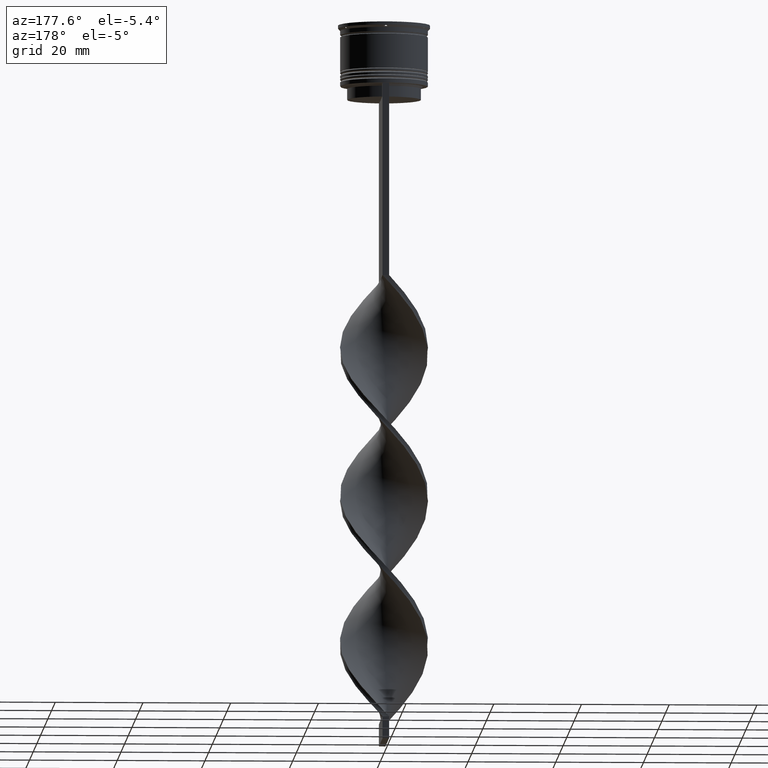
[diagram: clean part render]
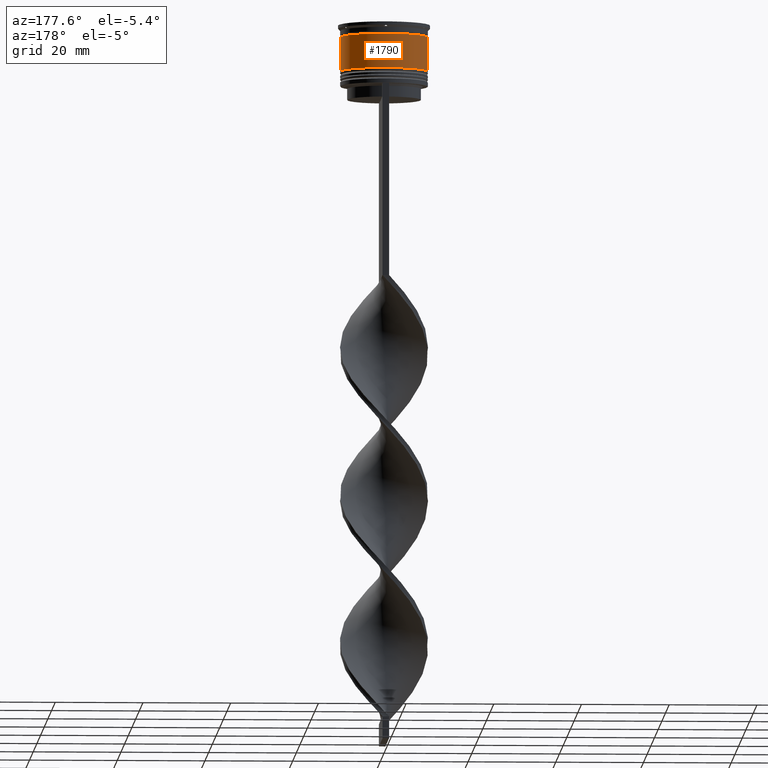
[diagram: same view with one face highlighted and labeled with its STEP entity id]
A machine part, auxiliary view. The second image highlights one B-rep face of the part: STEP entity #1790.
In plain terms, the highlighted cylindrical surface (partial cylindrical patch) has radius 10 mm, axis along (-0, -0, 1).
Its self-contained STEP definition (entity closure, byte-faithful):
#178 = VERTEX_POINT ( 'NONE', #1671 ) ;
#188 = AXIS2_PLACEMENT_3D ( 'NONE', #1976, #3183, #1700 ) ;
#302 = EDGE_CURVE ( 'NONE', #178, #3414, #1903, .T. ) ;
#366 = DIRECTION ( 'NONE',  ( -0.000000000000000000, -0.000000000000000000, 1.000000000000000000 ) ) ;
#410 = CARTESIAN_POINT ( 'NONE',  ( 0.000000000000000000, 0.000000000000000000, -10.50000000000000000 ) ) ;
#499 = ORIENTED_EDGE ( 'NONE', *, *, #2583, .T. ) ;
#763 = CARTESIAN_POINT ( 'NONE',  ( 10.00000000000000000, 0.000000000000000000, 0.000000000000000000 ) ) ;
#796 = LINE ( 'NONE', #1997, #1215 ) ;
#824 = LINE ( 'NONE', #763, #1021 ) ;
#978 = CARTESIAN_POINT ( 'NONE',  ( 0.000000000000000000, 0.000000000000000000, 0.000000000000000000 ) ) ;
#1021 = VECTOR ( 'NONE', #2030, 1000.000000000000000 ) ;
#1041 = EDGE_CURVE ( 'NONE', #3012, #178, #824, .T. ) ;
#1112 = VERTEX_POINT ( 'NONE', #1476 ) ;
#1215 = VECTOR ( 'NONE', #3206, 1000.000000000000000 ) ;
#1301 = DIRECTION ( 'NONE',  ( 1.000000000000000000, 0.000000000000000000, 0.000000000000000000 ) ) ;
#1476 = CARTESIAN_POINT ( 'NONE',  ( -10.00000000000000178, 1.224646799147353454E-15, -10.50000000000000000 ) ) ;
#1658 = EDGE_CURVE ( 'NONE', #3012, #1112, #2031, .T. ) ;
#1671 = CARTESIAN_POINT ( 'NONE',  ( 9.999999999999998224, 0.000000000000000000, -2.700000000000001954 ) ) ;
#1700 = DIRECTION ( 'NONE',  ( 1.000000000000000000, 0.000000000000000000, 0.000000000000000000 ) ) ;
#1790 = ADVANCED_FACE ( 'NONE', ( #2075 ), #2707, .T. ) ;
#1854 = AXIS2_PLACEMENT_3D ( 'NONE', #410, #366, #1301 ) ;
#1898 = ORIENTED_EDGE ( 'NONE', *, *, #1041, .F. ) ;
#1903 = CIRCLE ( 'NONE', #188, 9.999999999999998224 ) ;
#1976 = CARTESIAN_POINT ( 'NONE',  ( 0.000000000000000000, 0.000000000000000000, -2.700000000000001954 ) ) ;
#1997 = CARTESIAN_POINT ( 'NONE',  ( -10.00000000000000000, 1.224646799147353256E-15, 0.000000000000000000 ) ) ;
#2030 = DIRECTION ( 'NONE',  ( -0.000000000000000000, -0.000000000000000000, 1.000000000000000000 ) ) ;
#2031 = CIRCLE ( 'NONE', #1854, 10.00000000000000178 ) ;
#2075 = FACE_OUTER_BOUND ( 'NONE', #2444, .T. ) ;
#2185 = DIRECTION ( 'NONE',  ( -0.000000000000000000, -0.000000000000000000, 1.000000000000000000 ) ) ;
#2444 = EDGE_LOOP ( 'NONE', ( #2612, #499, #3890, #1898 ) ) ;
#2583 = EDGE_CURVE ( 'NONE', #1112, #3414, #796, .T. ) ;
#2612 = ORIENTED_EDGE ( 'NONE', *, *, #1658, .T. ) ;
#2701 = DIRECTION ( 'NONE',  ( 1.000000000000000000, 0.000000000000000000, 0.000000000000000000 ) ) ;
#2707 = CYLINDRICAL_SURFACE ( 'NONE', #3425, 10.00000000000000000 ) ;
#2896 = CARTESIAN_POINT ( 'NONE',  ( -9.999999999999998224, 1.224646799147353256E-15, -2.700000000000001954 ) ) ;
#3012 = VERTEX_POINT ( 'NONE', #3900 ) ;
#3183 = DIRECTION ( 'NONE',  ( -0.000000000000000000, -0.000000000000000000, 1.000000000000000000 ) ) ;
#3206 = DIRECTION ( 'NONE',  ( -0.000000000000000000, -0.000000000000000000, 1.000000000000000000 ) ) ;
#3414 = VERTEX_POINT ( 'NONE', #2896 ) ;
#3425 = AXIS2_PLACEMENT_3D ( 'NONE', #978, #2185, #2701 ) ;
#3890 = ORIENTED_EDGE ( 'NONE', *, *, #302, .F. ) ;
#3900 = CARTESIAN_POINT ( 'NONE',  ( 10.00000000000000178, 0.000000000000000000, -10.50000000000000000 ) ) ;